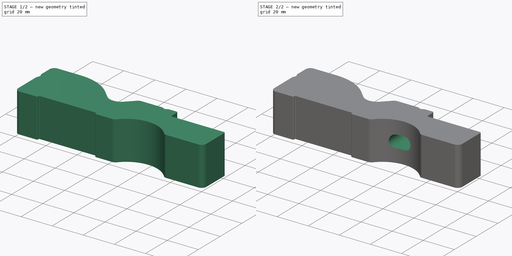
[diagram: build sequence overview — one tinted view per stage of 2, left to right]
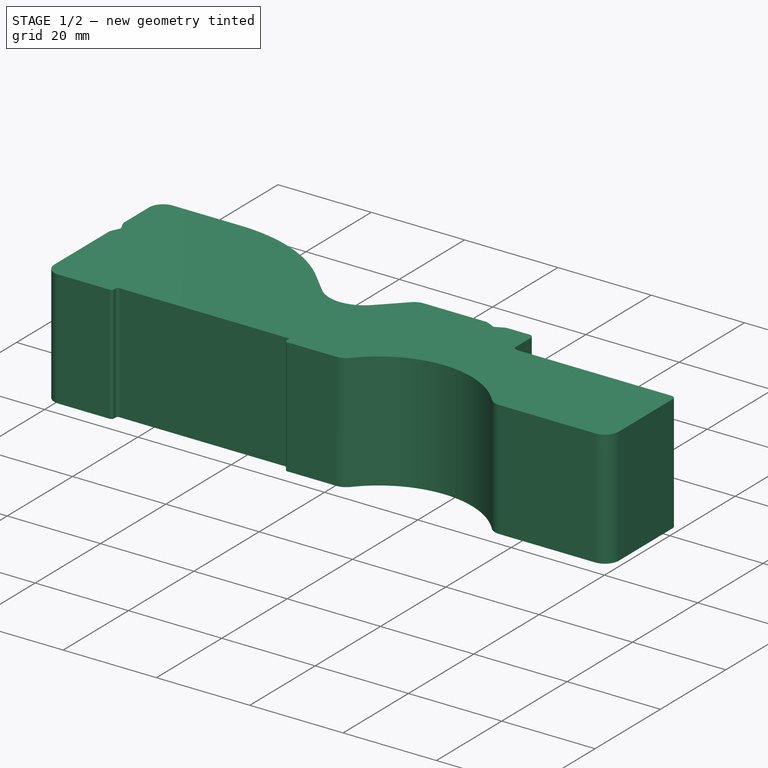
[diagram: stage 1 of 2 — iso view after this stage's code; geometry added in this stage tinted green]
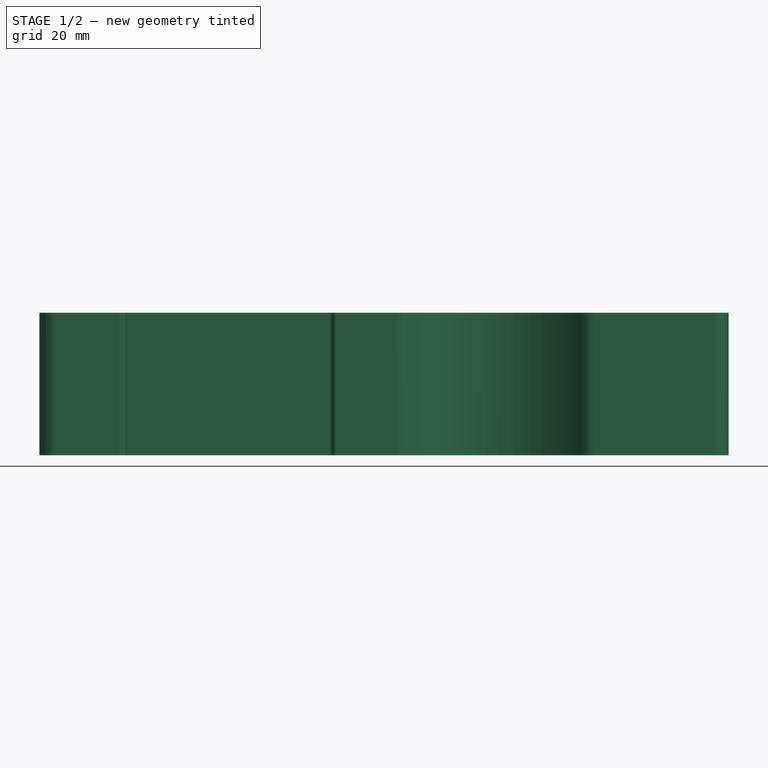
[diagram: stage 1 of 2 — front view after this stage's code; geometry added in this stage tinted green]
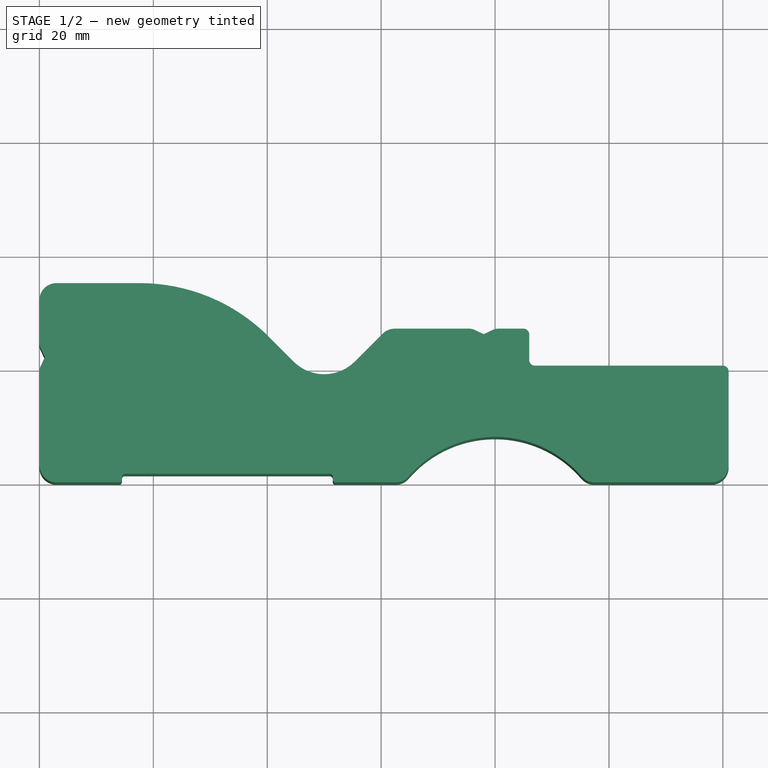
[diagram: stage 1 of 2 — top view after this stage's code; geometry added in this stage tinted green]
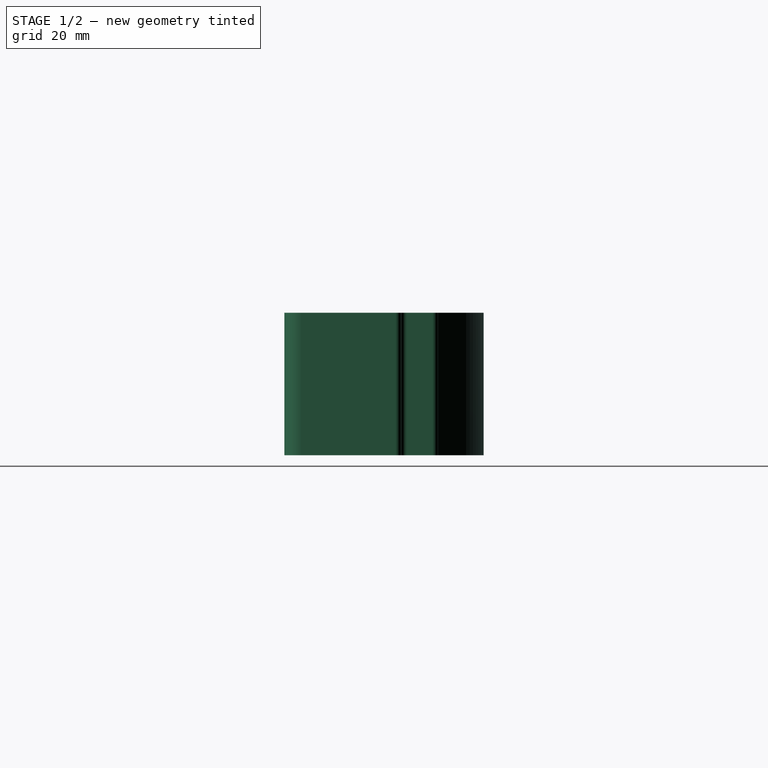
[diagram: stage 1 of 2 — right view after this stage's code; geometry added in this stage tinted green]
FCSTD DOCUMENT  (FreeCAD 0.19R24267 +99 (Git))
Label: V2 Clamp base
License: All rights reserved
LicenseURL: http://en.wikipedia.org/wiki/All_rights_reserved
objects: Sketcher::SketchObject×4, PartDesign::Pocket×2, PartDesign::Pad×1, PartDesign::Hole×1, PartDesign::Body×1
note: 13 computed .brp shape members not serialized (recipe doc carries the construction recipe); baked Part::Feature solids carry a one-line shape summary decoded from their .brp

FEATURE [Sketcher::SketchObject] Sketch  label="Main profile sketch"
  FullyConstrained = true
  MapMode = 5
  Support = -> [XY_Plane]
  sketch-geometry (50):
    g0: LineSegment StartX=0 StartY=32 StartZ=0 EndX=0 EndY=24.5 EndZ=0
    g1: LineSegment StartX=3 StartY=0 StartZ=0 EndX=14 EndY=0 EndZ=0
    g2: ArcOfCircle CenterX=3 CenterY=3 CenterZ=0 NormalX=0 NormalY=0 NormalZ=1 AngleXU=0 Radius=3 StartAngle=3.14159 EndAngle=4.71239
    g3: LineSegment StartX=3 StartY=35 StartZ=0 EndX=17.603 EndY=35 EndZ=0
    g4: ArcOfCircle CenterX=3 CenterY=32 CenterZ=0 NormalX=0 NormalY=0 NormalZ=1 AngleXU=0 Radius=3 StartAngle=1.5708 EndAngle=3.14159
    g5: LineSegment StartX=0.187384 StartY=23.6548 StartZ=0 EndX=0.959013 EndY=22 EndZ=0
    g6: LineSegment StartX=0.959013 StartY=22 StartZ=0 EndX=0.187384 EndY=20.3452 EndZ=0
    g7: ArcOfCircle CenterX=2 CenterY=24.5 CenterZ=0 NormalX=0 NormalY=0 NormalZ=1 AngleXU=0 Radius=2 StartAngle=3.14159 EndAngle=3.57792
    g8: LineSegment StartX=0 StartY=3 StartZ=0 EndX=0 EndY=19.5 EndZ=0
    g9: ArcOfCircle CenterX=2 CenterY=19.5 CenterZ=0 NormalX=0 NormalY=0 NormalZ=1 AngleXU=0 Radius=2 StartAngle=2.70526 EndAngle=3.14159
    g10: LineSegment StartX=0.959013 StartY=22 StartZ=0 EndX=32 EndY=22 EndZ=0
    g11: LineSegment StartX=32 StartY=22 StartZ=0 EndX=27.1931 EndY=30 EndZ=0
    g12: LineSegment StartX=32 StartY=22 StartZ=0 EndX=27.1931 EndY=14 EndZ=0
    g13: LineSegment StartX=27.1931 StartY=14 StartZ=0 EndX=0 EndY=14 EndZ=0
    g14: LineSegment StartX=27.1931 StartY=30 StartZ=0 EndX=0 EndY=30 EndZ=0
    g15: Circle CenterX=50 CenterY=30 CenterZ=0 NormalX=0 NormalY=0 NormalZ=1 AngleXU=0 Radius=10
    g16: LineSegment StartX=40.2304 StartY=25.6274 StartZ=0 EndX=44.636 EndY=21.2218 EndZ=0
    g17: LineSegment StartX=60.2635 StartY=26.1213 StartZ=0 EndX=55.364 EndY=21.2218 EndZ=0
    g18: LineSegment StartX=50 StartY=30 StartZ=0 EndX=50 EndY=19 EndZ=0
    g19: ArcOfCircle CenterX=50 CenterY=26.5858 CenterZ=0 NormalX=0 NormalY=0 NormalZ=1 AngleXU=0 Radius=7.58579 StartAngle=3.92699 EndAngle=5.49779
    g20: GeomPoint X=50 Y=20 Z=0
    g21: ArcOfCircle CenterX=17.603 CenterY=3 CenterZ=0 NormalX=0 NormalY=0 NormalZ=1 AngleXU=0 Radius=32 StartAngle=0.785398 EndAngle=1.5708
    g22: ArcOfCircle CenterX=62.3848 CenterY=24 CenterZ=0 NormalX=0 NormalY=0 NormalZ=1 AngleXU=0 Radius=3 StartAngle=1.5708 EndAngle=2.35619
    g23: LineSegment StartX=121 StartY=19.5 StartZ=0 EndX=121 EndY=3 EndZ=0
    g24: ArcOfCircle CenterX=120 CenterY=19.5 CenterZ=0 NormalX=0 NormalY=0 NormalZ=1 AngleXU=0 Radius=1 StartAngle=5e-16 EndAngle=1.5708
    g25: ArcOfCircle CenterX=118 CenterY=3 CenterZ=0 NormalX=0 NormalY=0 NormalZ=1 AngleXU=0 Radius=3 StartAngle=4.71239 EndAngle=6.28319
    g26: ArcOfCircle CenterX=80 CenterY=-12 CenterZ=0 NormalX=0 NormalY=0 NormalZ=1 AngleXU=0 Radius=20 StartAngle=0.710449 EndAngle=2.43114
    g27: LineSegment StartX=97.4356 StartY=0 StartZ=0 EndX=118 EndY=0 EndZ=0
    g28: ArcOfCircle CenterX=62.5644 CenterY=3 CenterZ=0 NormalX=0 NormalY=0 NormalZ=1 AngleXU=0 Radius=3 StartAngle=4.71239 EndAngle=5.57274
    g29: ArcOfCircle CenterX=97.4356 CenterY=3 CenterZ=0 NormalX=0 NormalY=0 NormalZ=1 AngleXU=0 Radius=3 StartAngle=3.85204 EndAngle=4.71239
    g30: LineSegment StartX=62.3848 StartY=27 StartZ=0 EndX=75.5 EndY=27 EndZ=0
    g31: LineSegment StartX=86 StartY=26 StartZ=0 EndX=86 EndY=21.5 EndZ=0
    g32: LineSegment StartX=87 StartY=20.5 StartZ=0 EndX=120 EndY=20.5 EndZ=0
    g33: ArcOfCircle CenterX=85 CenterY=26 CenterZ=0 NormalX=0 NormalY=0 NormalZ=1 AngleXU=0 Radius=1 StartAngle=-9e-16 EndAngle=1.5708
    g34: ArcOfCircle CenterX=87 CenterY=21.5 CenterZ=0 NormalX=0 NormalY=0 NormalZ=1 AngleXU=0 Radius=1 StartAngle=3.14159 EndAngle=4.71239
    g35: LineSegment StartX=76.3452 StartY=26.8126 StartZ=0 EndX=78 EndY=26.041 EndZ=0
    g36: LineSegment StartX=78 StartY=26.041 StartZ=0 EndX=79.6548 EndY=26.8126 EndZ=0
    g37: LineSegment StartX=80.5 StartY=27 StartZ=0 EndX=85 EndY=27 EndZ=0
    g38: ArcOfCircle CenterX=75.5 CenterY=25 CenterZ=0 NormalX=0 NormalY=0 NormalZ=1 AngleXU=0 Radius=2 StartAngle=1.13446 EndAngle=1.5708
    g39: ArcOfCircle CenterX=80.5 CenterY=25 CenterZ=0 NormalX=0 NormalY=0 NormalZ=1 AngleXU=0 Radius=2 StartAngle=1.5708 EndAngle=2.00713
    g40: LineSegment StartX=75.5 StartY=27 StartZ=0 EndX=80.5 EndY=27 EndZ=0
    g41: LineSegment StartX=15 StartY=1.5 StartZ=0 EndX=51 EndY=1.5 EndZ=0
    g42: LineSegment StartX=51.5 StartY=1 StartZ=0 EndX=51.5 EndY=0.5 EndZ=0
    g43: LineSegment StartX=14.5 StartY=1 StartZ=0 EndX=14.5 EndY=0.5 EndZ=0
    g44: LineSegment StartX=52 StartY=0 StartZ=0 EndX=62.5644 EndY=0 EndZ=0
    g45: LineSegment StartX=14 StartY=0 StartZ=0 EndX=52 EndY=0 EndZ=0
    g46: ArcOfCircle CenterX=15 CenterY=1 CenterZ=0 NormalX=0 NormalY=0 NormalZ=1 AngleXU=0 Radius=0.5 StartAngle=1.5708 EndAngle=3.14159
    g47: ArcOfCircle CenterX=14 CenterY=0.5 CenterZ=0 NormalX=0 NormalY=0 NormalZ=1 AngleXU=0 Radius=0.5 StartAngle=4.71239 EndAngle=6.28319
    g48: ArcOfCircle CenterX=51 CenterY=1 CenterZ=0 NormalX=0 NormalY=0 NormalZ=1 AngleXU=0 Radius=0.5 StartAngle=3.9282e-12 EndAngle=1.5708
    g49: ArcOfCircle CenterX=52 CenterY=0.5 CenterZ=0 NormalX=0 NormalY=0 NormalZ=1 AngleXU=0 Radius=0.5 StartAngle=3.14159 EndAngle=4.71239
  constraints (129):
    c: Tangent(g1,g2) = -1.5708
    c: Horizontal(g3)
    c: Tangent(g3,g4) = 1.5708
    c: Tangent(g0,g4) = -1.5708
    c: Coincident(g6,g5)
    c: Tangent(g5,g7) = -1.5708
    c: Tangent(g0,g7) = -1.5708
    c: Vertical(g8)
    c: Tangent(g6,g9) = -1.5708
    c: Tangent(g8,g9) = 1.5708
    c: Equal(g5,g6)
    c: Angle(g5,g6) = 2.26893
    c: Vertical(g0)
    c: PointOnObject(g2,g-2)
    c: PointOnObject(g0,g-2)
    c: Equal(g7,g9)
    c: DistanceY(g8,g0) = 5
    c: Radius(g9) = 2
    c: Coincident(g10,g5)
    c: Horizontal(g10)
    c: Coincident(g11,g10)
    c: Coincident(g12,g10)
    c: Coincident(g13,g12)
    c: PointOnObject(g13,g8)
    c: Horizontal(g13)
    c: Coincident(g14,g11)
    c: PointOnObject(g14,g0)
    c: Horizontal(g14)
    c: Symmetric(g12,g11,g10)
    c: DistanceY(g13,g14) = 16
    c: Angle(g11,g12) = 2.05949
    c: DistanceX(g-1,g10) = 32
    c: DistanceY(g-1,g15) = 30  'PIN Y'
    c: DistanceX(g-1,g15) = 50  'PIN X'
    c: Radius(g15) = 10
    c: Radius(g2) = 3
    c: PointOnObject(g1,g-1)
    c: Tangent(g16,g15)
    c: Tangent(g15,g17)
    c: Coincident(g18,g15)
    c: Vertical(g18)
    c: PointOnObject(g19,g18)
    c: Tangent(g19,g16) = -1.5708
    c: Tangent(g19,g17) = 1.5708
    c: PointOnObject(g18,g19)
    c: PointOnObject(g20,g15)
    c: PointOnObject(g20,g18)
    c: DistanceY(g18,g20) = 1
    c: Angle(g17,g16) = 1.5708
    c: DistanceY(g-1,g3) = 35
    c: Tangent(g16,g21) = 1.5708
    c: Radius(g21) = 32
    c: Equal(g2,g4)
    c: DistanceY(g-1,g5) = 22
    c: Tangent(g8,g2) = 1.5708
    c: Tangent(g17,g22) = -1.5708
    c: Equal(g22,g2)
    c: Vertical(g23)
    c: Tangent(g23,g24) = 1.5708
    c: Tangent(g23,g25) = 1.5708
    c: Equal(g25,g2)
    c: Horizontal(g1)
    c: DistanceX(g15,g26) = 30
    c: Radius(g24) = 1
    c: Tangent(g1,g27)
    c: Tangent(g26,g28) = 1.5708
    c: Tangent(g26,g29) = 1.5708
    c: Tangent(g27,g29) = -1.5708
    c: Equal(g28,g29)
    c: Equal(g29,g2)
    c: Radius(g26) = 20
    c: DistanceY(g26,g44) = 12
    c: Horizontal(g30)
    c: Vertical(g31)
    c: Horizontal(g32)
    c: Tangent(g31,g33) = 1.5708
    c: Tangent(g31,g34) = -1.5708
    c: Tangent(g32,g34) = -1.5708
    c: DistanceY(g22,g15) = 3
    c: Coincident(g36,g35)
    c: Equal(g35,g36)
    c: Tangent(g30,g37)
    c: Tangent(g35,g38) = 1.5708
    c: Tangent(g30,g38) = 1.5708
    c: Tangent(g36,g39) = 1.5708
    c: Tangent(g37,g39) = 1.5708
    c: Equal(g39,g38)
    c: Equal(g38,g9)
    c: Coincident(g40,g30)
    c: Coincident(g40,g37)
    c: Angle(g36,g35) = 2.26893
    c: DistanceX(g40,g40) = 5
    c: DistanceX(g35,g26) = 2
    c: Equal(g33,g34)
    c: Equal(g34,g24)
    c: Tangent(g30,g22) = 1.5708
    c: DistanceY(g32,g10) = 1.5
    c: Tangent(g37,g33) = 1.5708
    c: Tangent(g32,g24) = 1.5708
    c: DistanceX(g26,g31) = 6
    c: Tangent(g27,g25) = -1.5708
    c: DistanceX(g31,g23) = 35
    c: DistanceY(g24,g15) = 9.5
    c: DistanceX(g0,g3) = 17.603
    c: Tangent(g3,g21) = 1.5708
    c: Horizontal(g41)
    c: Vertical(g43)
    c: Vertical(g42)
    c: Tangent(g1,g44)
    c: Tangent(g43,g46) = -1.5708
    c: Tangent(g41,g46) = 1.5708
    c: Tangent(g43,g47) = 1.5708
    c: Tangent(g1,g47) = -1.5708
    c: Tangent(g42,g48) = 1.5708
    c: Tangent(g41,g48) = 1.5708
    c: Tangent(g42,g49) = -1.5708
    c: Tangent(g44,g49) = -1.5708
    c: Coincident(g44,g45)
    c: Coincident(g45,g1)
    c: Equal(g47,g46)
    c: Equal(g46,g48)
    c: Equal(g48,g49)
    c: Radius(g46) = 0.5
    c: DistanceY(g1,g41) = 1.5
    c: Tangent(g44,g28) = -1.5708
    c: DistanceX(g2,g23) = 121
    c: DistanceX(g41,g41) = 36
    c: DistanceY(g41,g15) = 28.5
    c: DistanceX(g2,g41) = 15
FEATURE [PartDesign::Pad] Pad  label="Clamp width pad"
  Direction = (1,1,1)
  Length = 25
  Length2 = 100
  Midplane = true
  Profile = -> Sketch
  Type = 0
FEATURE [Sketcher::SketchObject] Sketch001  label="3D Render pin allignment mark sketch"
  FullyConstrained = true
  MapMode = 5
  Support = -> [XY_Plane]
  sketch-geometry (1):
    g0: Circle CenterX=50 CenterY=30 CenterZ=0 NormalX=0 NormalY=0 NormalZ=1 AngleXU=0 Radius=10.1
  constraints (3):
    c: DistanceX(g-1,g0) = 50
    c: DistanceY(g-1,g0) = 30
    c: Radius(g0) = 10.1
FEATURE [PartDesign::Pocket] Pocket  label="3D Render pin allignment mark"
  BaseFeature = -> Pad
  Length = 1
  Length2 = 100
  Midplane = true
  Profile = -> Sketch001
  Type = 0
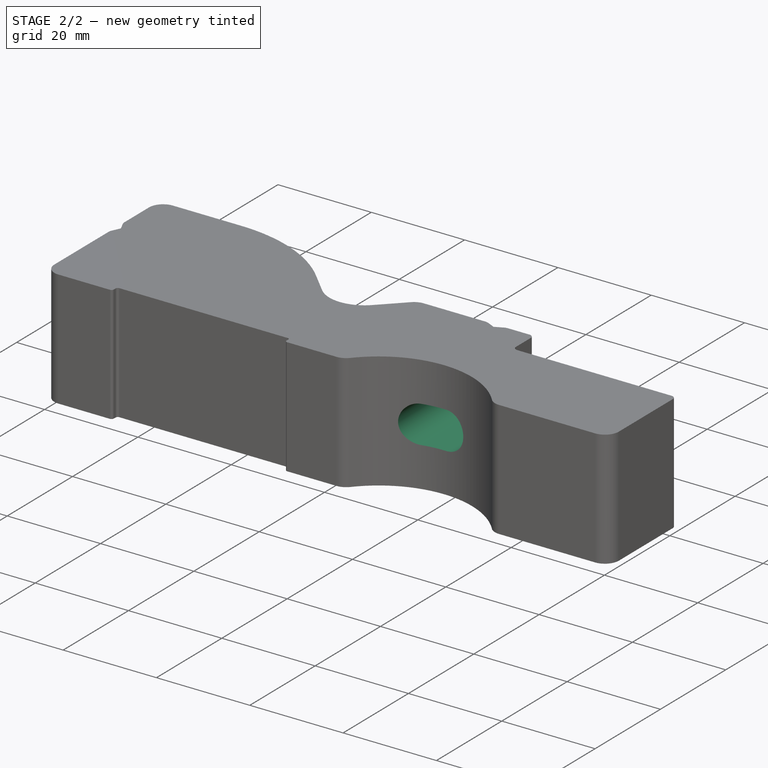
[diagram: stage 2 of 2 — iso view after this stage's code; geometry added in this stage tinted green]
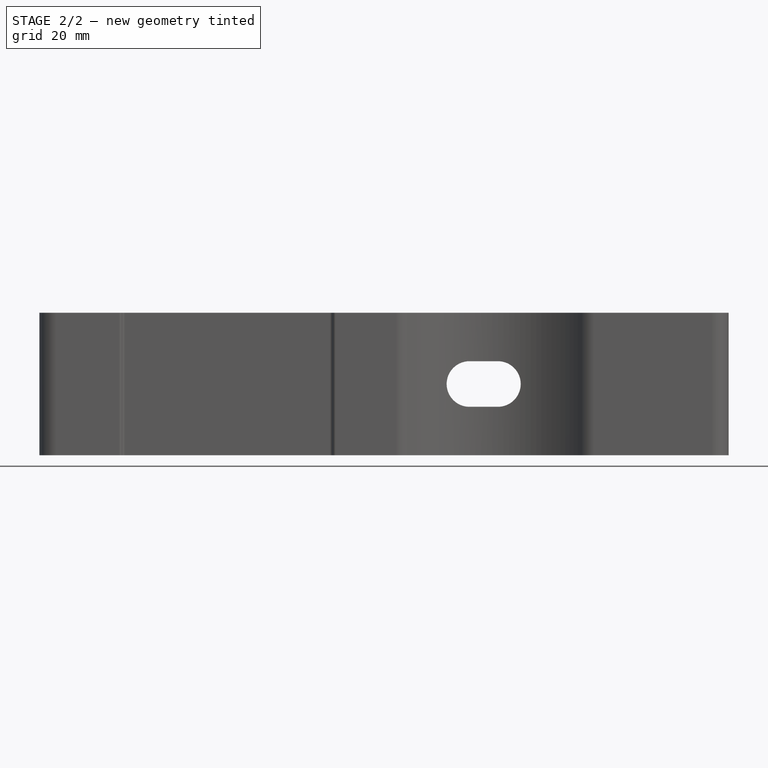
[diagram: stage 2 of 2 — front view after this stage's code; geometry added in this stage tinted green]
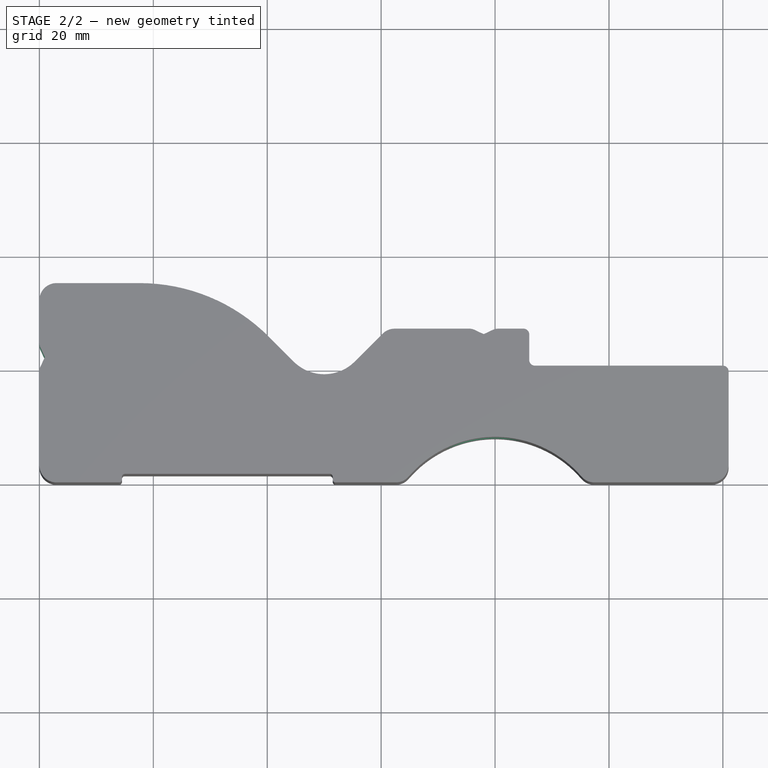
[diagram: stage 2 of 2 — top view after this stage's code; geometry added in this stage tinted green]
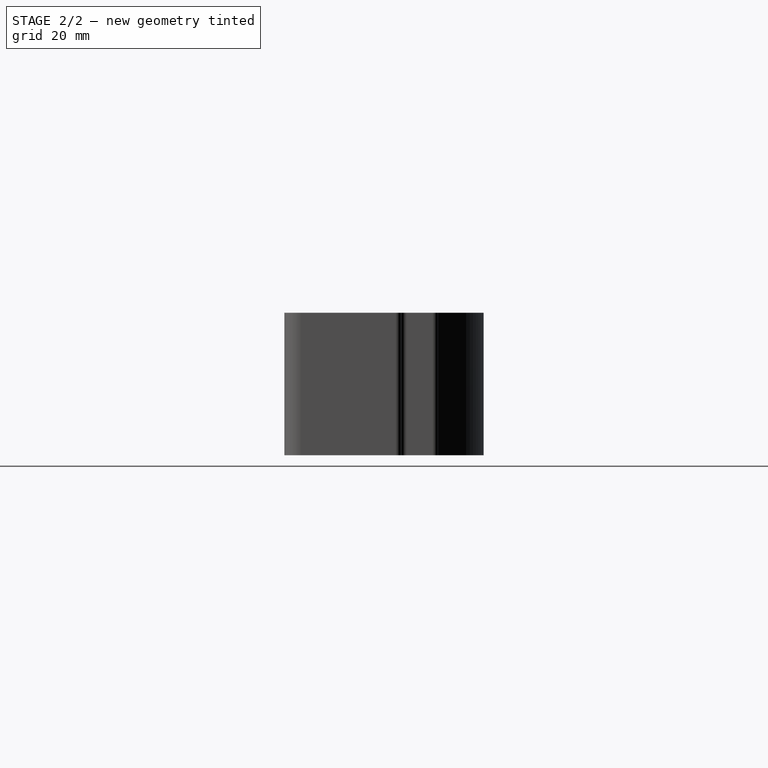
[diagram: stage 2 of 2 — right view after this stage's code; geometry added in this stage tinted green]
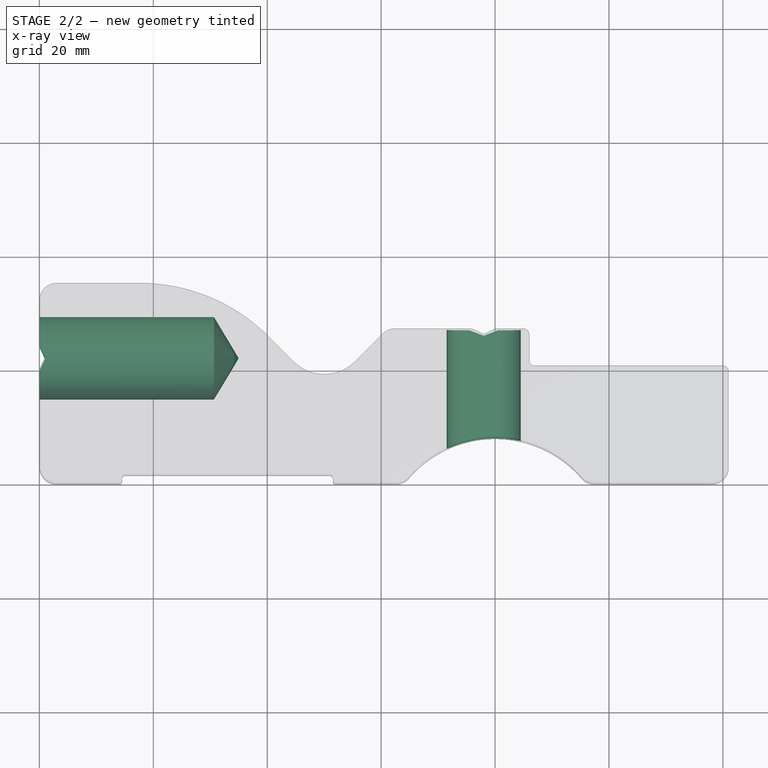
[diagram: stage 2 of 2 — x-ray composite at the top view; earlier geometry ghosted, this stage's added geometry solid]
FEATURE [Sketcher::SketchObject] Sketch002  label="M16x1.5 mount hole sketch"
  FullyConstrained = true
  MapMode = 5
  Placement = pos=(0,0,0) rot=(0.57735,0.57735,0.57735;2.0944rad)
  Support = -> [YZ_Plane]
  sketch-geometry (1):
    g0: Circle CenterX=22 CenterY=0 CenterZ=0 NormalX=0 NormalY=0 NormalZ=1 AngleXU=0 Radius=8
  constraints (3):
    c: PointOnObject(g0,g-1)
    c: DistanceX(g-1,g0) = 22
    c: Radius(g0) = 8
FEATURE [PartDesign::Hole] Hole  label="M16x1.5 mount hole"
  BaseFeature = -> Pocket
  Depth = 35
  DepthType = 0
  Diameter = 14.5
  DrillForDepth = true
  DrillPoint = 1
  DrillPointAngle = 118
  HoleCutCountersinkAngle = 90
  HoleCutCustomValues = false
  HoleCutDepth = 0
  HoleCutDiameter = 17.6
  HoleCutType = 0
  ModelActualThread = false
  Profile = -> Sketch002
  Reversed = true
  Tapered = false
  TaperedAngle = 90
  ThreadAngle = 60
  ThreadClass = 0
  ThreadCutOffInner = 0.16238
  ThreadCutOffOuter = 0.32476
  ThreadDirection = 0
  ThreadFit = 0
  ThreadPitch = 1.5
  ThreadSize = 35
  ThreadType = 2
  Threaded = true
FEATURE [Sketcher::SketchObject] Sketch003  label="M8 long bolt slotted hole sketch"
  ExternalGeometry = -> [Pad]
  FullyConstrained = true
  MapMode = 5
  Placement = pos=(0,0,0) rot=(1,0,0;1.5708rad)
  Support = -> [XZ_Plane]
  sketch-geometry (5):
    g0: ArcOfCircle CenterX=75.5 CenterY=0 CenterZ=0 NormalX=0 NormalY=0 NormalZ=1 AngleXU=0 Radius=4 StartAngle=1.5708 EndAngle=4.71239
    g1: ArcOfCircle CenterX=80.5 CenterY=-1e-16 CenterZ=0 NormalX=0 NormalY=0 NormalZ=1 AngleXU=0 Radius=4 StartAngle=4.71239 EndAngle=7.85398
    g2: LineSegment StartX=75.5 StartY=-4 StartZ=0 EndX=80.5 EndY=-4 EndZ=0
    g3: LineSegment StartX=75.5 StartY=4 StartZ=0 EndX=80.5 EndY=4 EndZ=0
    g4: Circle CenterX=78 CenterY=0 CenterZ=0 NormalX=0 NormalY=0 NormalZ=1 AngleXU=0 Radius=2.5
  constraints (13):
    c: Tangent(g0,g3) = 1.5708
    c: Tangent(g0,g2) = -1.5708
    c: Tangent(g2,g1) = -1.5708
    c: Tangent(g3,g1) = 1.5708
    c: Horizontal(g2)
    c: Equal(g0,g1)
    c: PointOnObject(g0,g-1)
    c: PointOnObject(g4,g-1)
    c: PointOnObject(g0,g4)
    c: PointOnObject(g1,g4)
    c: Radius(g1) = 4
    c: DistanceX(g0,g1) = 5
    c: PointOnObject(g4,g-3)
FEATURE [PartDesign::Pocket] Pocket001  label="M8 long bolt slotted hole"
  BaseFeature = -> Hole
  Length = 5
  Length2 = 100
  Midplane = true
  Profile = -> Sketch003
  Type = 1
FEATURE [PartDesign::Body] Body
  Group = -> [Sketch,Pad,Sketch001,Pocket,Sketch002,Hole,Sketch003,Pocket001]
  Origin = -> Origin
  Tip = -> Pocket001
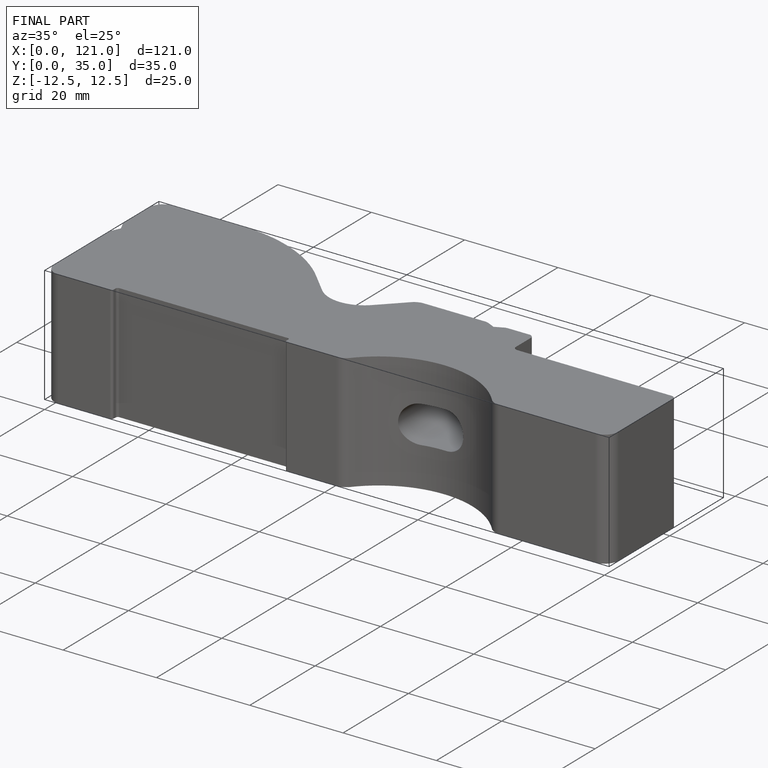
[diagram: finished part — iso view with bounding-box wireframe]
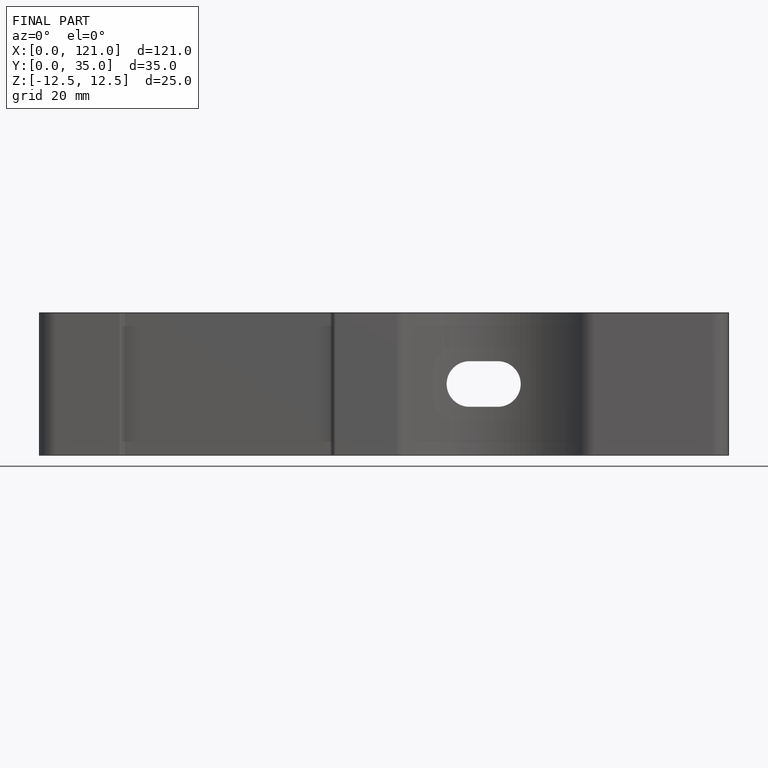
[diagram: finished part — front view with bounding-box wireframe]
